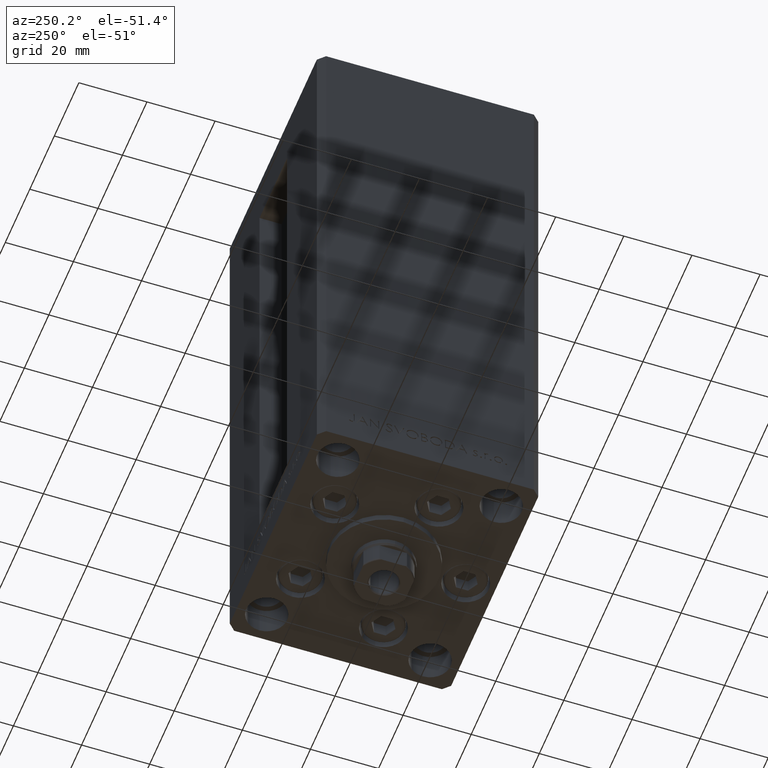
[diagram: clean part render]
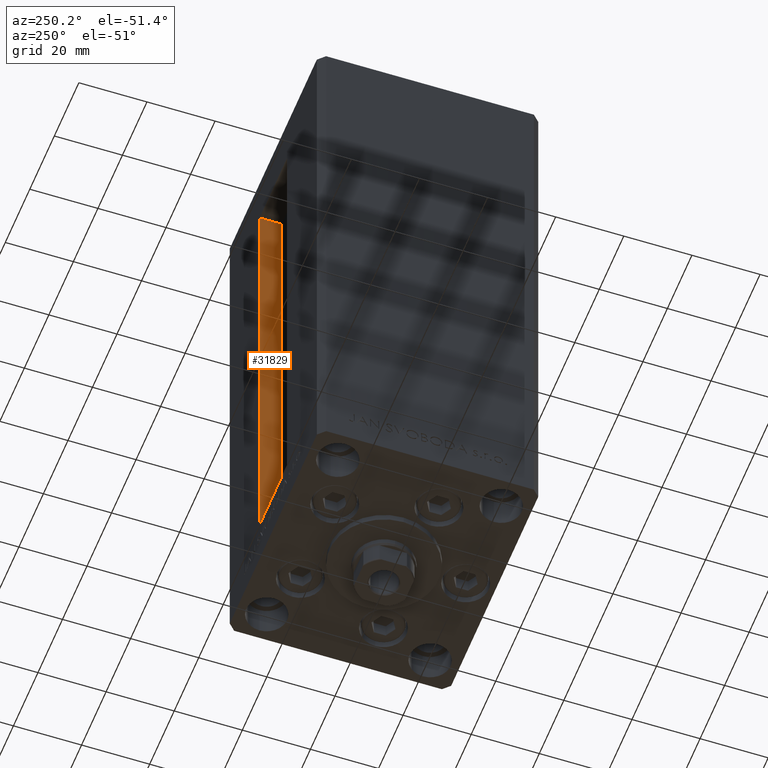
[diagram: same view with one face highlighted and labeled with its STEP entity id]
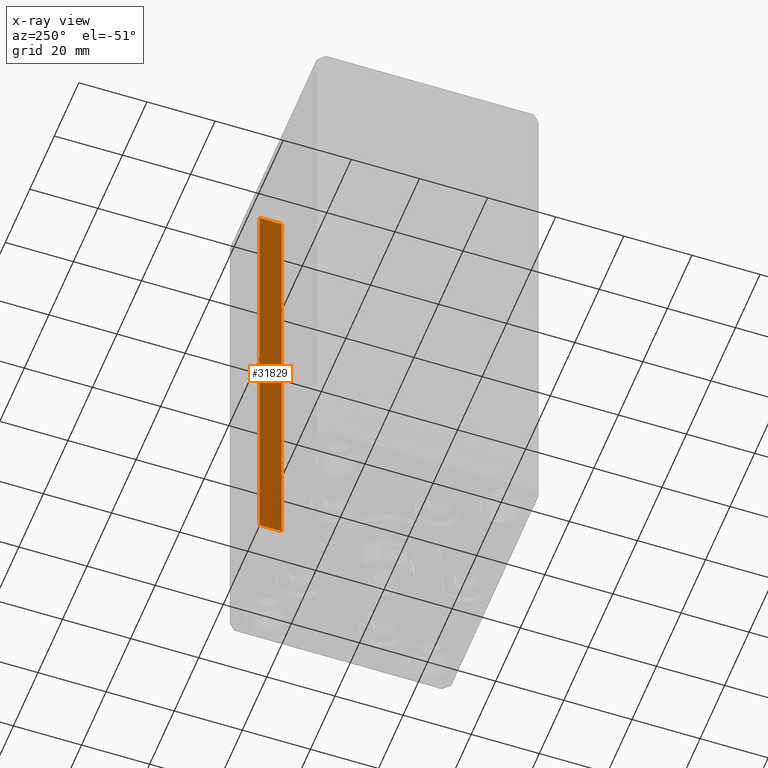
[diagram: x-ray of the same camera — body ghosted, the highlighted face saturated]
A machine part, auxiliary view. The second image highlights one B-rep face of the part: STEP entity #31829.
The next image is the same camera in x-ray: the body ghosted, the highlighted face saturated — about 3% of this face is hidden behind the body in this view.
In plain terms, the highlighted planar face has unit normal (1, 0, 0).
Its self-contained STEP definition (entity closure, byte-faithful):
#3731 = DIRECTION ( 'NONE',  ( 0.000000000000000000, 0.000000000000000000, -1.000000000000000000 ) ) ;
#4923 = CARTESIAN_POINT ( 'NONE',  ( 11.25000000000000178, 25.99999999999999289, 0.000000000000000000 ) ) ;
#8593 = CARTESIAN_POINT ( 'NONE',  ( 11.25000000000000178, 32.49999999999999289, 0.000000000000000000 ) ) ;
#13339 = LINE ( 'NONE', #27967, #48836 ) ;
#13970 = EDGE_CURVE ( 'NONE', #30249, #30375, #29065, .T. ) ;
#14880 = ORIENTED_EDGE ( 'NONE', *, *, #20235, .T. ) ;
#15794 = LINE ( 'NONE', #4923, #31604 ) ;
#15935 = CARTESIAN_POINT ( 'NONE',  ( 11.25000000000000178, 25.99999999999999289, 136.0000000000000000 ) ) ;
#16311 = DIRECTION ( 'NONE',  ( -0.000000000000000000, -1.000000000000000000, 0.000000000000000000 ) ) ;
#17074 = CARTESIAN_POINT ( 'NONE',  ( 11.25000000000000178, 25.99999999999999289, 0.000000000000000000 ) ) ;
#17826 = EDGE_CURVE ( 'NONE', #30375, #46345, #13339, .T. ) ;
#19519 = CARTESIAN_POINT ( 'NONE',  ( 11.25000000000000178, 25.99999999999999289, 0.000000000000000000 ) ) ;
#19753 = DIRECTION ( 'NONE',  ( 0.000000000000000000, 1.000000000000000000, 0.000000000000000000 ) ) ;
#20235 = EDGE_CURVE ( 'NONE', #24091, #46345, #40603, .T. ) ;
#21901 = VECTOR ( 'NONE', #32195, 1000.000000000000000 ) ;
#23252 = FACE_OUTER_BOUND ( 'NONE', #28854, .T. ) ;
#24091 = VERTEX_POINT ( 'NONE', #28813 ) ;
#25848 = EDGE_CURVE ( 'NONE', #24091, #30249, #15794, .T. ) ;
#27213 = DIRECTION ( 'NONE',  ( 1.000000000000000000, -0.000000000000000000, 0.000000000000000000 ) ) ;
#27388 = VECTOR ( 'NONE', #40704, 1000.000000000000000 ) ;
#27967 = CARTESIAN_POINT ( 'NONE',  ( 11.25000000000000178, 0.000000000000000000, 136.0000000000000000 ) ) ;
#28599 = AXIS2_PLACEMENT_3D ( 'NONE', #19519, #27213, #3731 ) ;
#28813 = CARTESIAN_POINT ( 'NONE',  ( 11.25000000000000178, 25.99999999999999289, 0.000000000000000000 ) ) ;
#28854 = EDGE_LOOP ( 'NONE', ( #43419, #33543, #14880, #32487 ) ) ;
#29065 = LINE ( 'NONE', #40948, #27388 ) ;
#30249 = VERTEX_POINT ( 'NONE', #8593 ) ;
#30375 = VERTEX_POINT ( 'NONE', #45194 ) ;
#31604 = VECTOR ( 'NONE', #19753, 1000.000000000000000 ) ;
#31829 = ADVANCED_FACE ( 'NONE', ( #23252 ), #38359, .F. ) ;
#32195 = DIRECTION ( 'NONE',  ( -0.000000000000000000, -0.000000000000000000, 1.000000000000000000 ) ) ;
#32487 = ORIENTED_EDGE ( 'NONE', *, *, #17826, .F. ) ;
#33543 = ORIENTED_EDGE ( 'NONE', *, *, #25848, .F. ) ;
#38359 = PLANE ( 'NONE',  #28599 ) ;
#40603 = LINE ( 'NONE', #17074, #21901 ) ;
#40704 = DIRECTION ( 'NONE',  ( -0.000000000000000000, -0.000000000000000000, 1.000000000000000000 ) ) ;
#40948 = CARTESIAN_POINT ( 'NONE',  ( 11.25000000000000178, 32.49999999999999289, 0.000000000000000000 ) ) ;
#43419 = ORIENTED_EDGE ( 'NONE', *, *, #13970, .F. ) ;
#45194 = CARTESIAN_POINT ( 'NONE',  ( 11.24999999999999467, 32.49999999999999289, 136.0000000000000000 ) ) ;
#46345 = VERTEX_POINT ( 'NONE', #15935 ) ;
#48836 = VECTOR ( 'NONE', #16311, 1000.000000000000000 ) ;